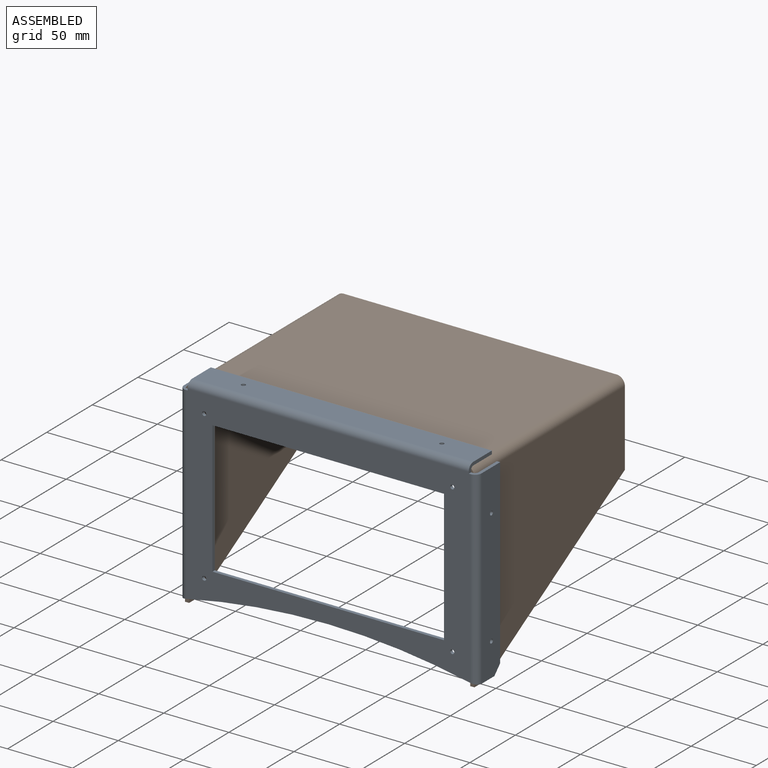
[diagram: assembled view]
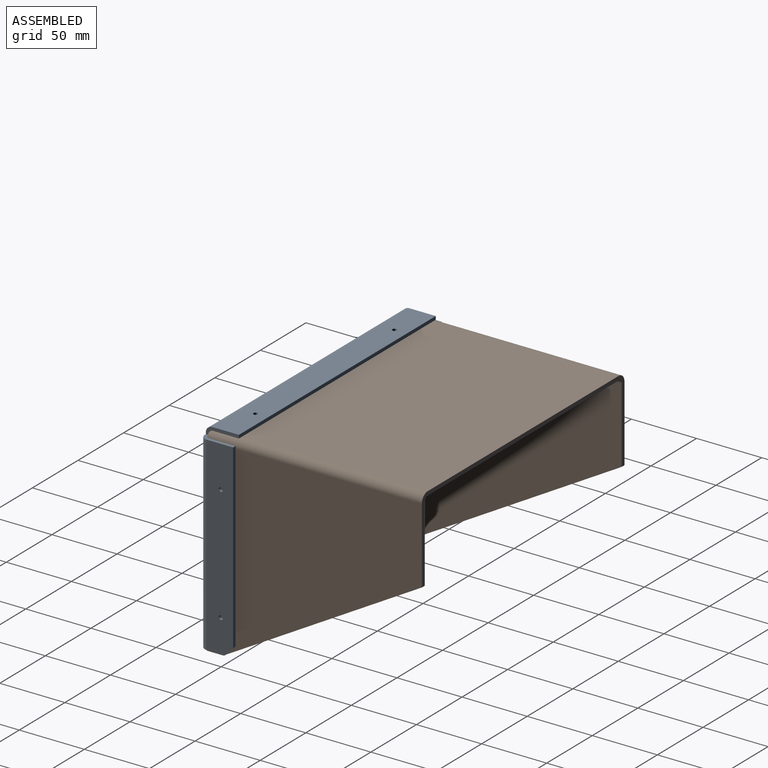
[diagram: assembled view, second angle]
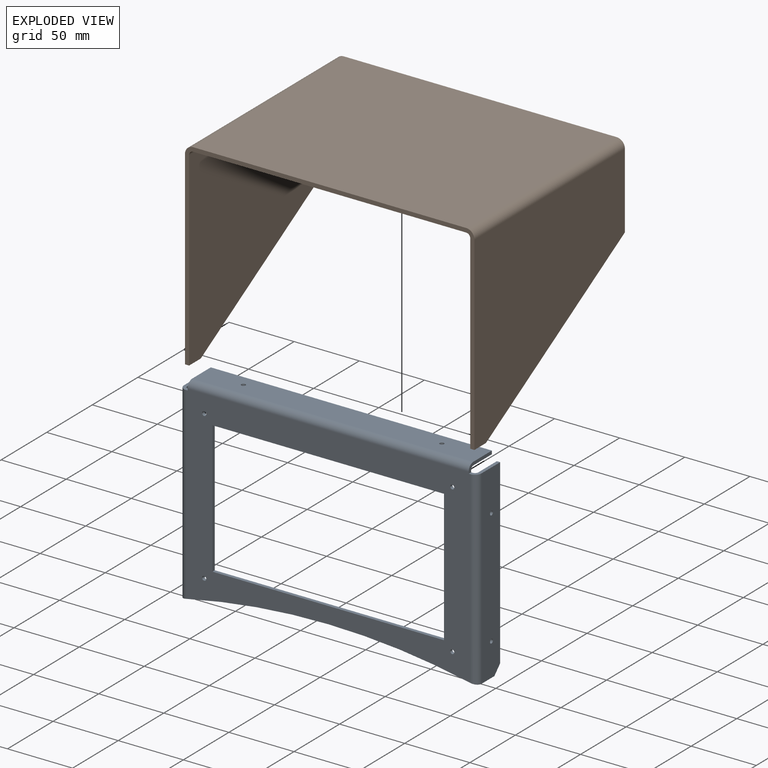
[diagram: exploded view]
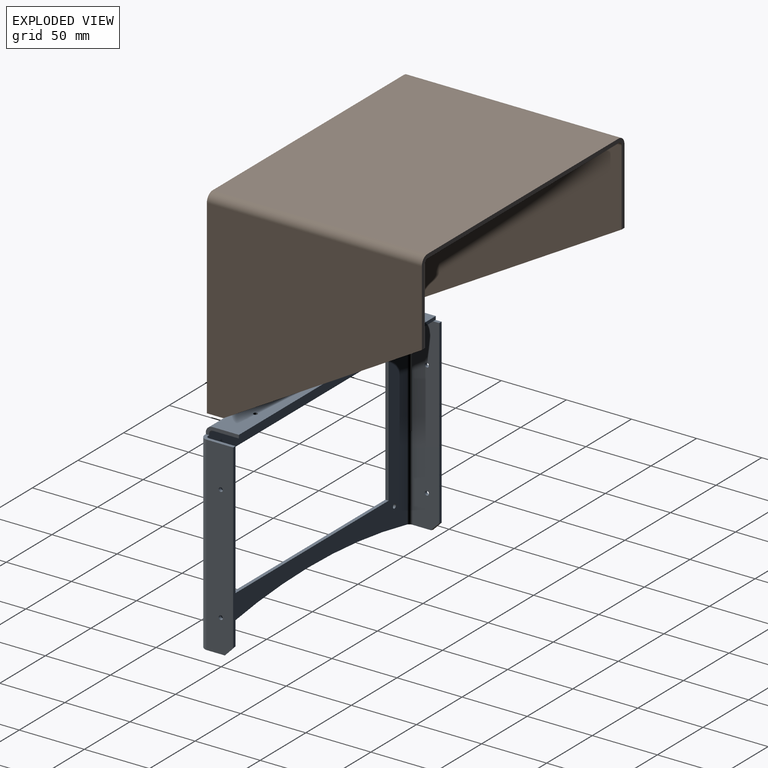
[diagram: exploded view, second angle]
ASSEMBLY  parts=2 mates=3
PART A: 38 faces, bbox 231.4x25.4x152.4 mm
  f0: plane 139.54x2.54mm, normal (0,-1,0), area 353.7mm2, adj f10,f11,f19,f37
  f1: plane 215.9x2.54mm, normal (0,-1,0), area 548.4mm2, adj f7,f8,f12,f20
  f2: plane 177.8x2.54mm, normal (0,0,-1), area 451.6mm2, adj f3,f5,f15,f22
  f3: plane 101.6x2.54mm, normal (1,0,0), area 258.1mm2, adj f2,f4,f15,f22
  f4: plane 177.8x2.54mm, normal (0,0,1), area 451.6mm2, adj f3,f5,f15,f22
  f5: plane 101.6x2.54mm, normal (-1,0,0), area 258.1mm2, adj f2,f4,f15,f22
  f6: plane 25.4x6.35mm, normal (0,0,1), area 70mm2, adj f7,f13,f14,f15,f16,f21,f22,f23
  f7: plane 25.4x6.35mm, normal (-1,0,0), area 70mm2, adj f1,f6,f12,f15,f17,f20,f22,f24
  f8: plane 25.4x6.35mm, normal (1,0,0), area 70mm2, adj f1,f11,f12,f15,f17,f20,f22,f24
  f9: cylinder r=520.7mm len=228.6mm, axis (0,1,0), area 662.8mm2, adj f10,f13,f15,f16,f18,f19,f21,f22
  f10: plane 146.06x20.33mm, normal (1,0,0), area 2931.2mm2, adj f0,f9,f11,f18,f33,f35,f37
  f11: plane 25.4x6.35mm, normal (0,0,1), area 70mm2, adj f0,f8,f10,f15,f18,f19,f22,f25
  f12: plane 215.9x20.32mm, normal (0,0,1), area 4371.3mm2, adj f1,f7,f8,f17,f30,f31
  f13: plane 146.06x20.33mm, normal (-1,0,0), area 2931.2mm2, adj f6,f9,f14,f16,f32,f34,f36
  f14: plane 139.54x2.54mm, normal (0,-1,0), area 353.7mm2, adj f6,f13,f21,f36
  f15: plane 218.44x146.2mm, normal (0,1,0), area 12146.7mm2, adj f2,f3,f4,f5,f6,f7,f8,f9
  f16: cylinder r=5.08mm len=146.05mm, axis (0,0,-1), area 1162.2mm2, adj f6,f9,f13,f15
  f17: cylinder r=5.08mm len=215.9mm, axis (-1,0,0), area 1722.8mm2, adj f7,f8,f12,f15
  f18: cylinder r=5.08mm len=146.05mm, axis (0,0,1), area 1162.2mm2, adj f9,f10,f11,f15
  f19: plane 145.49x20.33mm, normal (-1,0,0), area 2919.8mm2, adj f0,f9,f11,f25,f33,f35,f37
  f20: plane 215.9x20.32mm, normal (0,0,-1), area 4371.3mm2, adj f1,f7,f8,f24,f30,f31
  f21: plane 145.49x20.33mm, normal (1,0,0), area 2919.8mm2, adj f6,f9,f14,f23,f32,f34,f36
  f22: plane 218.44x146.2mm, normal (0,-1,0), area 12146.7mm2, adj f2,f3,f4,f5,f6,f7,f8,f9
  f23: cylinder r=2.54mm len=145.49mm, axis (0,0,-1), area 579.7mm2, adj f6,f9,f21,f22
  f24: cylinder r=2.54mm len=215.9mm, axis (-1,0,0), area 861.4mm2, adj f7,f8,f20,f22
  f25: cylinder r=2.54mm len=145.49mm, axis (0,0,1), area 579.7mm2, adj f9,f11,f19,f22
  f26: cylinder r=1.59mm len=3.18mm, axis (0,1,0), area 25.3mm2, adj f15,f22
  f27: cylinder r=1.59mm len=3.18mm, axis (0,1,0), area 25.3mm2, adj f15,f22
  f28: cylinder r=1.59mm len=3.18mm, axis (0,1,0), area 25.3mm2, adj f15,f22
  f29: cylinder r=1.59mm len=3.18mm, axis (0,1,0), area 25.3mm2, adj f15,f22
  f30: cylinder r=1.59mm len=3.18mm, axis (0,0,1), area 25.3mm2, adj f12,f20
  f31: cylinder r=1.59mm len=3.18mm, axis (0,0,1), area 25.3mm2, adj f12,f20
  f32: cylinder r=1.59mm len=3.18mm, axis (-1,0,0), area 25.3mm2, adj f13,f21
  f33: cylinder r=1.59mm len=3.18mm, axis (-1,0,0), area 25.3mm2, adj f10,f19
  f34: cylinder r=1.59mm len=3.18mm, axis (-1,0,0), area 25.3mm2, adj f13,f21
  f35: cylinder r=1.59mm len=3.18mm, axis (-1,0,0), area 25.3mm2, adj f10,f19
  f36: cone r=520.7mm half-angle=45deg, axis (0,-1,0), area 23.4mm2, adj f9,f13,f14,f21
  f37: cone r=520.7mm half-angle=45deg, axis (0,-1,0), area 23.4mm2, adj f0,f9,f10,f19
PART B: 16 faces, bbox 222.3x165.1x152.4 mm
  f0: plane 222.25x152.4mm, normal (0,-1,0), area 1640.2mm2, adj f2,f5,f6,f7,f8,f9,f10,f11
  f1: plane 222.25x64.41mm, normal (0,1,0), area 1081.5mm2, adj f3,f4,f5,f6,f7,f8,f9,f11
  f2: plane 12.7x3.18mm, normal (0,0,-1), area 40.3mm2, adj f0,f3,f9,f15
  f3: plane 152.4x87.99mm, normal (0,0.5,-0.87), area 558.7mm2, adj f1,f2,f9,f15
  f4: plane 152.4x87.99mm, normal (0,0.5,-0.87), area 558.7mm2, adj f1,f5,f10,f11
  f5: plane 165.1x146.05mm, normal (1,0,0), area 17408.2mm2, adj f0,f1,f4,f6,f10
  f6: cylinder r=6.35mm len=165.1mm, axis (0,1,0), area 1646.8mm2, adj f0,f1,f5,f7
  f7: plane 209.55x165.1mm, normal (0,0,1), area 34596.7mm2, adj f0,f1,f6,f8
  f8: cylinder r=6.35mm len=165.1mm, axis (0,1,0), area 1646.8mm2, adj f0,f1,f7,f9
  f9: plane 165.1x146.05mm, normal (-1,0,0), area 17408.2mm2, adj f0,f1,f2,f3,f8
  f10: plane 12.7x3.18mm, normal (0,0,-1), area 40.3mm2, adj f0,f4,f5,f11
  f11: plane 165.1x146.05mm, normal (-1,0,0), area 17408.2mm2, adj f0,f1,f4,f10,f12
  f12: cylinder r=3.17mm len=165.1mm, axis (0,1,0), area 823.4mm2, adj f0,f1,f11,f13
  f13: plane 209.55x165.1mm, normal (0,0,-1), area 34596.7mm2, adj f0,f1,f12,f14
  f14: cylinder r=3.17mm len=165.1mm, axis (0,1,0), area 823.4mm2, adj f0,f1,f13,f15
  f15: plane 165.1x146.05mm, normal (1,0,0), area 17408.2mm2, adj f0,f1,f2,f3,f14
PLACE A rot(axis=(0,0,1),180deg) t=(-66.42,-167.64,-34.16)mm
PLACE B at identity fixed
MATE planar A.f20 <-> B.f7  axis (0,0,-1) through (-66.42,-152.4,39.5)mm
MATE planar B.f0 <-> A.f22  axis (0,-1,0) through (-67.05,-165.1,-6.12)mm
MATE planar A.f19 <-> B.f9  axis (1,0,0) through (-178.18,-152.46,-36.53)mm
